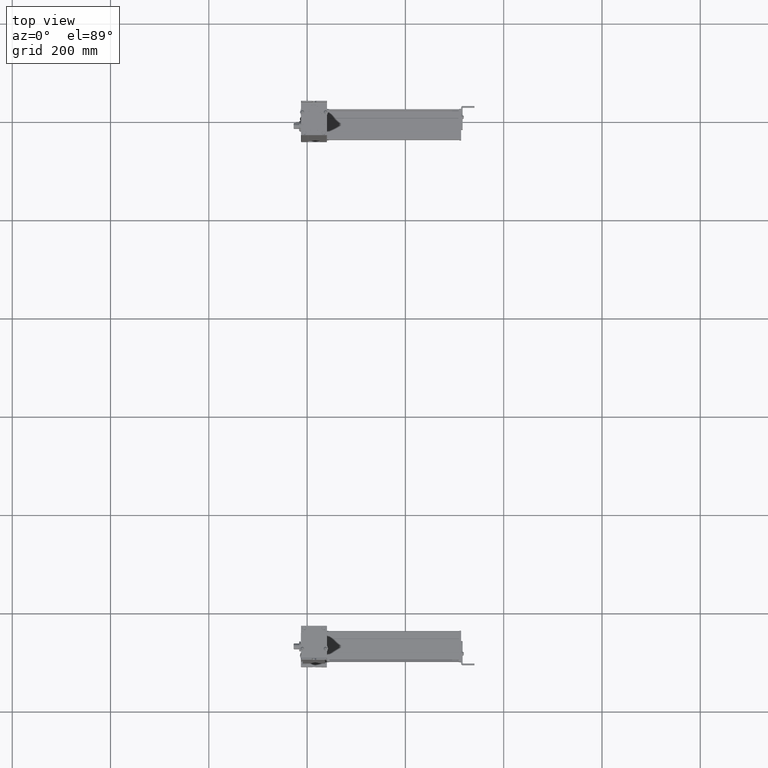
[diagram: clean part render]
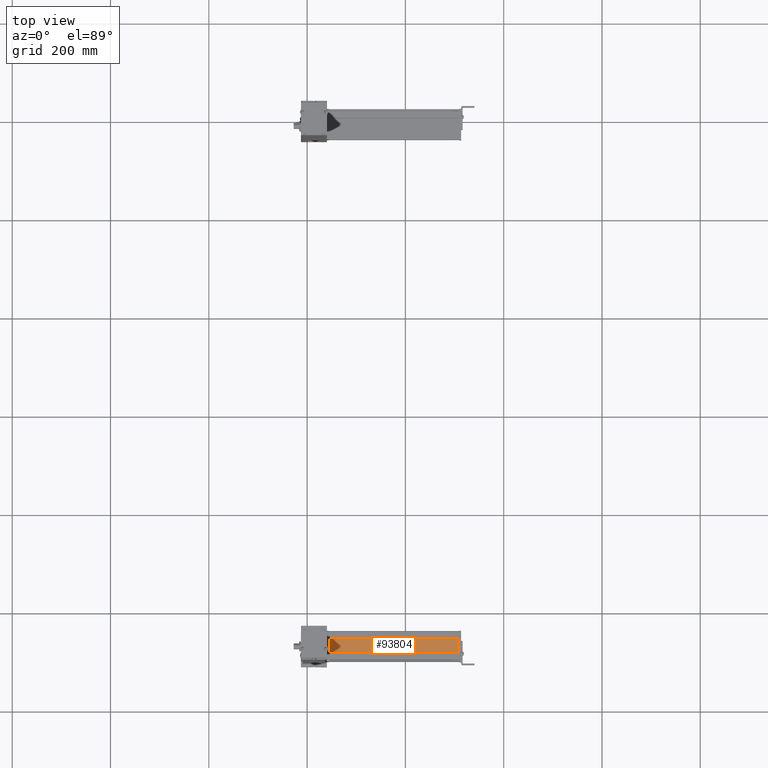
[diagram: same view with one face highlighted and labeled with its STEP entity id]
A machine part, top view. The second image highlights one B-rep face of the part: STEP entity #93804.
In plain terms, the highlighted planar face has unit normal (-0, -0, 1).
Its self-contained STEP definition (entity closure, byte-faithful):
#90505=CARTESIAN_POINT('Vertex',(671.195883662,138.767790275,248.500000001)) ;
#90508=CARTESIAN_POINT('Line Origine',(671.195883662,152.38909214,248.500000002)) ;
#90512=CARTESIAN_POINT('Vertex',(671.195883662,166.010394005,248.500000002)) ;
#93240=CARTESIAN_POINT('Axis2P3D Location',(936.195883662,171.710394004,248.500000002)) ;
#93767=CARTESIAN_POINT('Line Origine',(802.695883662,138.767790275,248.500000001)) ;
#93771=CARTESIAN_POINT('Vertex',(934.195883662,138.767790275,248.500000001)) ;
#93786=CARTESIAN_POINT('Line Origine',(802.695883662,166.010394005,248.500000002)) ;
#93790=CARTESIAN_POINT('Vertex',(934.195883662,166.010394005,248.500000002)) ;
#93793=CARTESIAN_POINT('Line Origine',(934.195883662,152.38909214,248.500000002)) ;
#90509=DIRECTION('Vector Direction',(0.,1.,0.)) ;
#93241=DIRECTION('Axis2P3D Direction',(-3.12250225676E-016,-1.06019454577E-016,1.)) ;
#93242=DIRECTION('Axis2P3D XDirection',(1.09048120098E-016,1.,1.06019454577E-016)) ;
#93768=DIRECTION('Vector Direction',(-1.,2.16134672475E-016,-2.16134672475E-016)) ;
#93787=DIRECTION('Vector Direction',(-1.,1.08067336237E-016,-3.24202008712E-016)) ;
#93794=DIRECTION('Vector Direction',(0.,1.,0.)) ;
#93243=AXIS2_PLACEMENT_3D('Plane Axis2P3D',#93240,#93241,#93242) ;
#93799=ORIENTED_EDGE('',*,*,#93792,.T.) ;
#93800=ORIENTED_EDGE('',*,*,#90514,.F.) ;
#93801=ORIENTED_EDGE('',*,*,#93773,.F.) ;
#93802=ORIENTED_EDGE('',*,*,#93797,.T.) ;
#90510=VECTOR('Line Direction',#90509,1.) ;
#93769=VECTOR('Line Direction',#93768,1.) ;
#93788=VECTOR('Line Direction',#93787,1.) ;
#93795=VECTOR('Line Direction',#93794,1.) ;
#93804=ADVANCED_FACE('Body.25',(#93803),#93244,.T.) ;
#90514=EDGE_CURVE('',#90506,#90513,#90511,.T.) ;
#93773=EDGE_CURVE('',#93772,#90506,#93770,.T.) ;
#93792=EDGE_CURVE('',#93791,#90513,#93789,.T.) ;
#93797=EDGE_CURVE('',#93772,#93791,#93796,.T.) ;
#93798=EDGE_LOOP('',(#93799,#93800,#93801,#93802)) ;
#93803=FACE_OUTER_BOUND('',#93798,.T.) ;
#90511=LINE('Line',#90508,#90510) ;
#93770=LINE('Line',#93767,#93769) ;
#93789=LINE('Line',#93786,#93788) ;
#93796=LINE('Line',#93793,#93795) ;
#93244=PLANE('Plane',#93243) ;
#90506=VERTEX_POINT('',#90505) ;
#90513=VERTEX_POINT('',#90512) ;
#93772=VERTEX_POINT('',#93771) ;
#93791=VERTEX_POINT('',#93790) ;